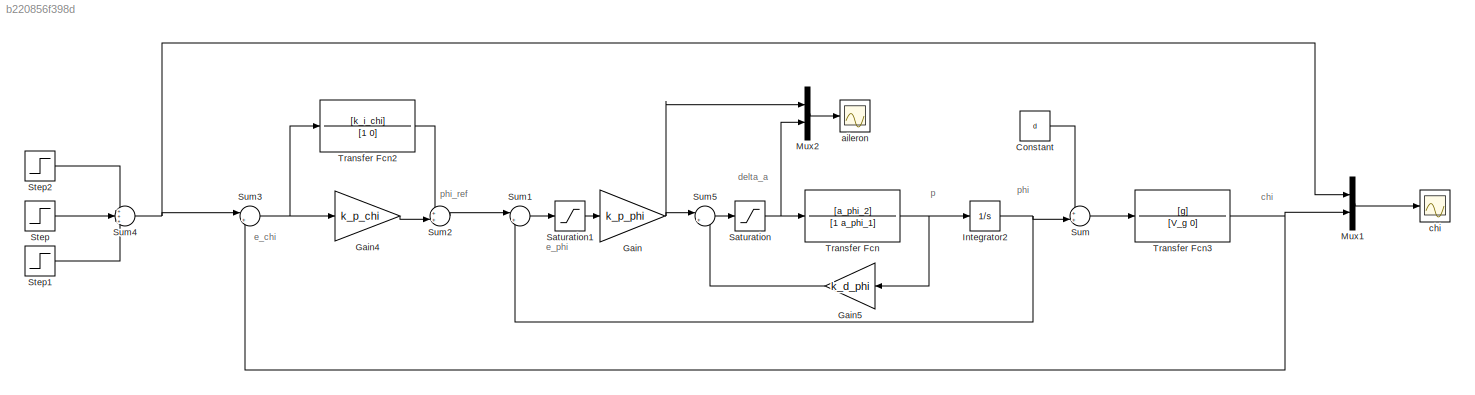
MODEL slx_b220856f398d
KIND model
CONFIG AbsTol = auto
CONFIG EnableMultiTasking = off
CONFIG FixedStep = auto
CONFIG MaxStep = auto
CONFIG MinStep = auto
CONFIG RelTol = 1e-3
CONFIG SampleTimeConstraint = Unconstrained
CONFIG Solver = VariableStepAuto
CONFIG SolverName = VariableStepAuto
CONFIG StartTime = 0.0
CONFIG StopTime = 250
BLOCK [Constant] Constant
  Value = d
BLOCK [Gain] Gain
  Gain = k_p_phi
  OutDataTypeStr = Inherit: Inherit via internal rule
  ParamDataTypeStr = Inherit: Inherit via internal rule
  SaturateOnIntegerOverflow = off
BLOCK [Gain] Gain4
  Gain = k_p_chi
  OutDataTypeStr = Inherit: Inherit via internal rule
  ParamDataTypeStr = Inherit: Inherit via internal rule
  SaturateOnIntegerOverflow = off
BLOCK [Gain] Gain5
  Gain = k_d_phi
  OutDataTypeStr = Inherit: Inherit via internal rule
  ParamDataTypeStr = Inherit: Inherit via internal rule
  SaturateOnIntegerOverflow = off
BLOCK [Integrator] Integrator2
  Ports = [1, 1]
BLOCK [Mux] Mux1
  DisplayOption = bar
  Inputs = 2
  Ports = [2, 1]
BLOCK [Mux] Mux2
  DisplayOption = bar
  Inputs = 2
  Ports = [2, 1]
BLOCK [Saturate] Saturation
  InputPortMap = u0
  LowerLimit = -30
  Ports = [1, 1]
  UpperLimit = 30
BLOCK [Saturate] Saturation1
  InputPortMap = u0
  LowerLimit = -15
  Ports = [1, 1]
  UpperLimit = 15
BLOCK [Step] Step
  After = 10
  SampleTime = 0
  Time = 25
BLOCK [Step] Step1
  After = 5
  SampleTime = 0
  Time = 100
BLOCK [Step] Step2
  After = 15
  SampleTime = 0
  Time = 200
BLOCK [Sum] Sum
  IconShape = round
  InputSameDT = off
  Inputs = ++|
  OutDataTypeStr = Inherit: Inherit via internal rule
  Ports = [2, 1]
  SaturateOnIntegerOverflow = off
BLOCK [Sum] Sum1
  IconShape = round
  InputSameDT = off
  Inputs = |+-
  OutDataTypeStr = Inherit: Inherit via internal rule
  Ports = [2, 1]
  SaturateOnIntegerOverflow = off
BLOCK [Sum] Sum2
  IconShape = round
  InputSameDT = off
  Inputs = ++|
  OutDataTypeStr = Inherit: Inherit via internal rule
  Ports = [2, 1]
  SaturateOnIntegerOverflow = off
BLOCK [Sum] Sum3
  IconShape = round
  InputSameDT = off
  Inputs = |+-
  OutDataTypeStr = Inherit: Inherit via internal rule
  Ports = [2, 1]
  SaturateOnIntegerOverflow = off
BLOCK [Sum] Sum4
  IconShape = round
  InputSameDT = off
  Inputs = +++
  OutDataTypeStr = Inherit: Inherit via internal rule
  Ports = [3, 1]
  SaturateOnIntegerOverflow = off
BLOCK [Sum] Sum5
  IconShape = round
  InputSameDT = off
  Inputs = |+-
  OutDataTypeStr = Inherit: Inherit via internal rule
  Ports = [2, 1]
  SaturateOnIntegerOverflow = off
BLOCK [TransferFcn] Transfer Fcn
  Denominator = [1 a_phi_1]
  Numerator = [a_phi_2]
BLOCK [TransferFcn] Transfer Fcn2
  Denominator = [1 0]
  Numerator = [k_i_chi]
BLOCK [TransferFcn] Transfer Fcn3
  Denominator = [V_g 0]
  Numerator = [g]
BLOCK [Scope] aileron 
  Floating = off
  NumInputPorts = 1
  Ports = [1]
  ScopeSpecificationString = Simulink.scopes.TimeScopeBlockCfg('CurrentConfiguration', extmgr.ConfigurationSet(extmgr.Configuration('Core','General UI',true),extmgr.Configuration('Core','Source UI',true),extmgr.Configuration('Sources','WiredSimulink',true,'DataLoggingVariableName','ScopeData1'),extmgr.Configuration('Visuals','Time Domain',true,'SerializedDisplays',{struct('MinYLimReal','-35.2514','MaxYLimReal','17.26257','YLa...<+1378ch>
BLOCK [Scope] chi
  Floating = off
  NumInputPorts = 1
  Ports = [1]
  ScopeSpecificationString = Simulink.scopes.TimeScopeBlockCfg('CurrentConfiguration', extmgr.ConfigurationSet(extmgr.Configuration('Core','General UI',true),extmgr.Configuration('Core','Source UI',true),extmgr.Configuration('Sources','WiredSimulink',true),extmgr.Configuration('Visuals','Time Domain',true,'SerializedDisplays',{struct('MinYLimReal','-4.50252','MaxYLimReal','40.52269','YLabelReal','','MinYLimMag','0.00000','Max...<+1344ch>
ANNOTATION (root): chi
ANNOTATION (root): delta_a
ANNOTATION (root): e_chi
ANNOTATION (root): e_phi
ANNOTATION (root): p
ANNOTATION (root): phi
ANNOTATION (root): phi_ref
LINE Constant:1 -> Sum:1
LINE Gain4:1 -> Sum2:2
LINE Gain5:1 -> Sum5:2
NET Gain:1 -> Mux2:1, Sum5:1
NET Integrator2:1 -> Sum1:2, Sum:2
LINE Mux1:1 -> chi:1
LINE Mux2:1 -> aileron :1
LINE Saturation1:1 -> Gain:1
NET Saturation:1 -> Mux2:2, Transfer Fcn:1
LINE Step1:1 -> Sum4:3
LINE Step2:1 -> Sum4:1
LINE Step:1 -> Sum4:2
LINE Sum1:1 -> Saturation1:1
LINE Sum2:1 -> Sum1:1
NET Sum3:1 -> Gain4:1, Transfer Fcn2:1
NET Sum4:1 -> Mux1:1, Sum3:1
LINE Sum5:1 -> Saturation:1
LINE Sum:1 -> Transfer Fcn3:1
LINE Transfer Fcn2:1 -> Sum2:1
NET Transfer Fcn3:1 -> Mux1:2, Sum3:2
NET Transfer Fcn:1 -> Gain5:1, Integrator2:1
note: NET lines group one-source signal fan-out (src -> all destinations, sorted); 1:1 wires keep LINE
